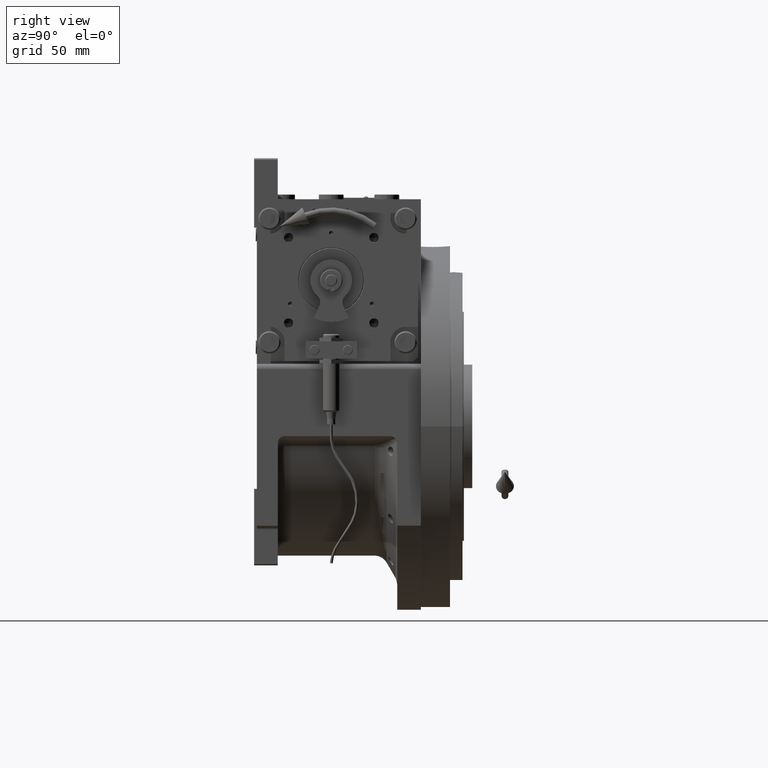
[diagram: clean part render]
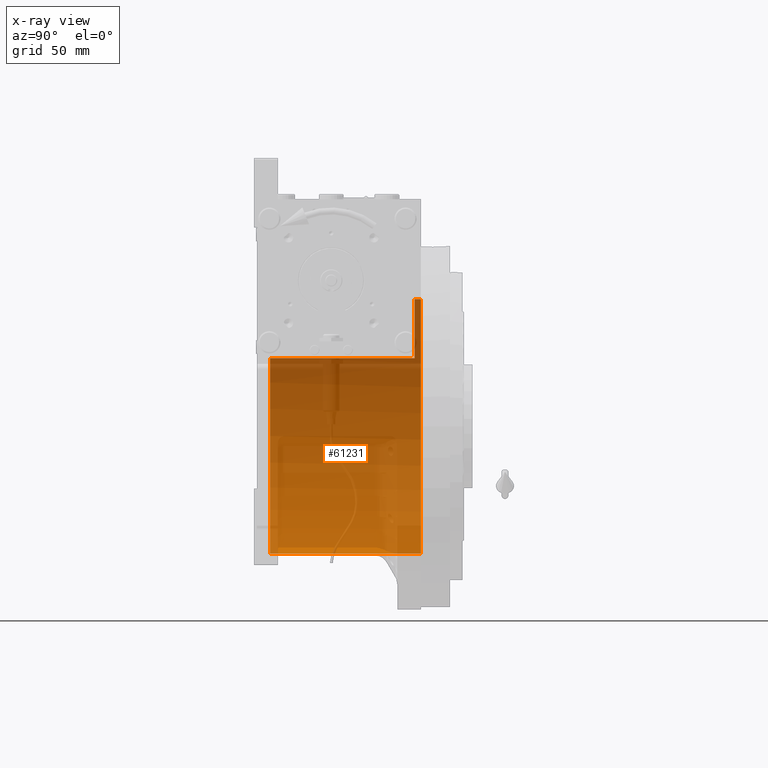
[diagram: x-ray — body ghosted, one internal face saturated and labeled with its STEP entity id]
A machine part, right view, then the same camera in x-ray: the body is ghosted and one INTERNAL B-rep face — a face not visible from any outside direction — is saturated and labeled: STEP entity #61231.
In plain terms, the highlighted cylindrical surface (partial cylindrical patch) has radius 91.5 mm, axis along (0, -1, 0).
Its self-contained STEP definition (entity closure, byte-faithful):
#426 = CARTESIAN_POINT ( 'NONE',  ( 0.000000000000000000, 64.50000000000000000, 0.000000000000000000 ) ) ;
#1372 = VERTEX_POINT ( 'NONE', #71525 ) ;
#1551 = DIRECTION ( 'NONE',  ( -0.000000000000000000, -1.000000000000000000, -0.000000000000000000 ) ) ;
#3522 = ORIENTED_EDGE ( 'NONE', *, *, #68874, .T. ) ;
#3934 = DIRECTION ( 'NONE',  ( 0.000000000000000000, -1.000000000000000000, 0.000000000000000000 ) ) ;
#6286 = VERTEX_POINT ( 'NONE', #9288 ) ;
#6544 = DIRECTION ( 'NONE',  ( 0.000000000000000000, 0.000000000000000000, 1.000000000000000000 ) ) ;
#9288 = CARTESIAN_POINT ( 'NONE',  ( -77.27386362800814368, -44.00000000000000000, 49.00000000000000000 ) ) ;
#12258 = EDGE_CURVE ( 'NONE', #60145, #22515, #38766, .T. ) ;
#15803 = CARTESIAN_POINT ( 'NONE',  ( 0.000000000000000000, 69.00000000000004263, -91.50000000000000000 ) ) ;
#17493 = DIRECTION ( 'NONE',  ( 0.000000000000000000, 1.000000000000000000, 0.000000000000000000 ) ) ;
#18264 = CARTESIAN_POINT ( 'NONE',  ( 0.000000000000000000, 60.00000000000000000, 0.000000000000000000 ) ) ;
#18292 = DIRECTION ( 'NONE',  ( -0.000000000000000000, 1.000000000000000000, -0.000000000000000000 ) ) ;
#20230 = ORIENTED_EDGE ( 'NONE', *, *, #40055, .F. ) ;
#20278 = DIRECTION ( 'NONE',  ( 0.000000000000000000, -1.000000000000000000, 0.000000000000000000 ) ) ;
#21984 = EDGE_CURVE ( 'NONE', #6286, #1372, #34734, .T. ) ;
#22452 = VECTOR ( 'NONE', #39896, 1000.000000000000000 ) ;
#22461 = EDGE_LOOP ( 'NONE', ( #73361, #3522, #73024, #36659, #20230, #69255 ) ) ;
#22515 = VERTEX_POINT ( 'NONE', #71012 ) ;
#23714 = CARTESIAN_POINT ( 'NONE',  ( 0.000000000000000000, -44.00000000000000000, 0.000000000000000000 ) ) ;
#23751 = VECTOR ( 'NONE', #18292, 1000.000000000000000 ) ;
#27092 = EDGE_CURVE ( 'NONE', #1372, #29482, #47346, .T. ) ;
#27255 = CARTESIAN_POINT ( 'NONE',  ( 1.120551821219827868E-14, 60.00000000000000000, 91.50000000000000000 ) ) ;
#29482 = VERTEX_POINT ( 'NONE', #27255 ) ;
#31664 = AXIS2_PLACEMENT_3D ( 'NONE', #23714, #71172, #65430 ) ;
#34734 = LINE ( 'NONE', #47384, #23751 ) ;
#35045 = CIRCLE ( 'NONE', #70530, 91.50000000000000000 ) ;
#36659 = ORIENTED_EDGE ( 'NONE', *, *, #21984, .F. ) ;
#38766 = LINE ( 'NONE', #15803, #22452 ) ;
#39896 = DIRECTION ( 'NONE',  ( 0.000000000000000000, -1.000000000000000000, 0.000000000000000000 ) ) ;
#40055 = EDGE_CURVE ( 'NONE', #22515, #6286, #56116, .T. ) ;
#40241 = CARTESIAN_POINT ( 'NONE',  ( 1.120551821219827868E-14, 69.00000000000004263, 91.50000000000000000 ) ) ;
#40843 = DIRECTION ( 'NONE',  ( 1.776356839400250465E-15, 0.000000000000000000, -1.000000000000000000 ) ) ;
#43244 = FACE_OUTER_BOUND ( 'NONE', #22461, .T. ) ;
#46129 = VERTEX_POINT ( 'NONE', #62231 ) ;
#47346 = CIRCLE ( 'NONE', #65658, 91.50000000000000000 ) ;
#47384 = CARTESIAN_POINT ( 'NONE',  ( -77.27386362800812947, 69.00000000000004263, 48.99999999999998579 ) ) ;
#48983 = CYLINDRICAL_SURFACE ( 'NONE', #54930, 91.50000000000000000 ) ;
#54930 = AXIS2_PLACEMENT_3D ( 'NONE', #55097, #20278, #72323 ) ;
#55097 = CARTESIAN_POINT ( 'NONE',  ( 0.000000000000000000, 69.00000000000004263, 0.000000000000000000 ) ) ;
#56116 = CIRCLE ( 'NONE', #31664, 91.50000000000000000 ) ;
#60145 = VERTEX_POINT ( 'NONE', #69898 ) ;
#61231 = ADVANCED_FACE ( 'NONE', ( #43244 ), #48983, .F. ) ;
#62231 = CARTESIAN_POINT ( 'NONE',  ( 1.120551821219827868E-14, 64.50000000000000000, 91.50000000000000000 ) ) ;
#62842 = VECTOR ( 'NONE', #3934, 1000.000000000000000 ) ;
#65430 = DIRECTION ( 'NONE',  ( 0.000000000000000000, 0.000000000000000000, 1.000000000000000000 ) ) ;
#65658 = AXIS2_PLACEMENT_3D ( 'NONE', #18264, #17493, #40843 ) ;
#68234 = LINE ( 'NONE', #40241, #62842 ) ;
#68874 = EDGE_CURVE ( 'NONE', #46129, #29482, #68234, .T. ) ;
#69255 = ORIENTED_EDGE ( 'NONE', *, *, #12258, .F. ) ;
#69898 = CARTESIAN_POINT ( 'NONE',  ( 0.000000000000000000, 64.50000000000000000, -91.50000000000000000 ) ) ;
#70530 = AXIS2_PLACEMENT_3D ( 'NONE', #426, #1551, #6544 ) ;
#71012 = CARTESIAN_POINT ( 'NONE',  ( 0.000000000000000000, -44.00000000000000000, -91.50000000000000000 ) ) ;
#71172 = DIRECTION ( 'NONE',  ( 0.000000000000000000, 1.000000000000000000, 0.000000000000000000 ) ) ;
#71525 = CARTESIAN_POINT ( 'NONE',  ( -77.27386362800814368, 60.00000000000000000, 48.99999999999998579 ) ) ;
#72323 = DIRECTION ( 'NONE',  ( 0.000000000000000000, 0.000000000000000000, -1.000000000000000000 ) ) ;
#73024 = ORIENTED_EDGE ( 'NONE', *, *, #27092, .F. ) ;
#73361 = ORIENTED_EDGE ( 'NONE', *, *, #73754, .F. ) ;
#73754 = EDGE_CURVE ( 'NONE', #46129, #60145, #35045, .T. ) ;